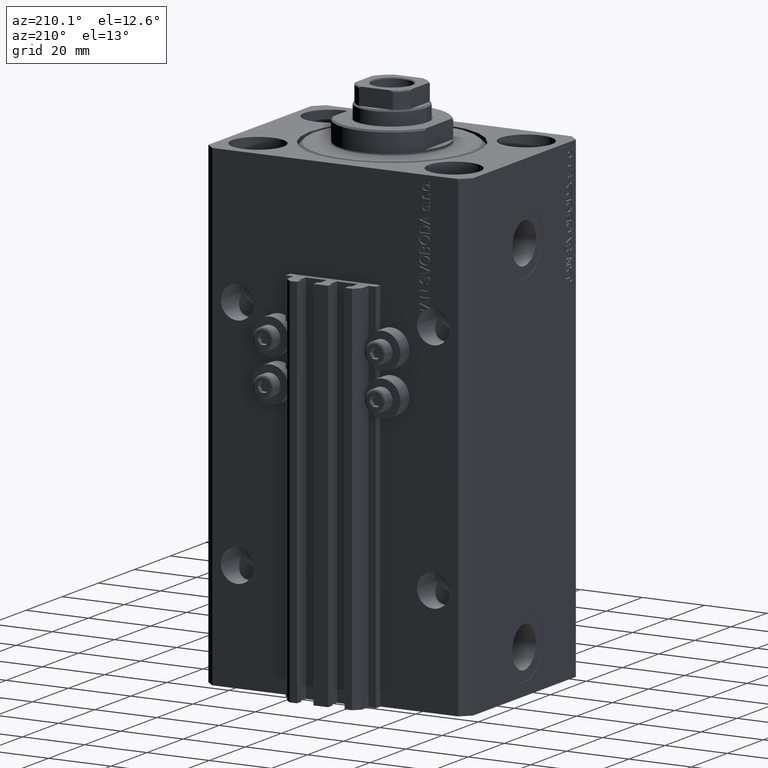
[diagram: clean part render]
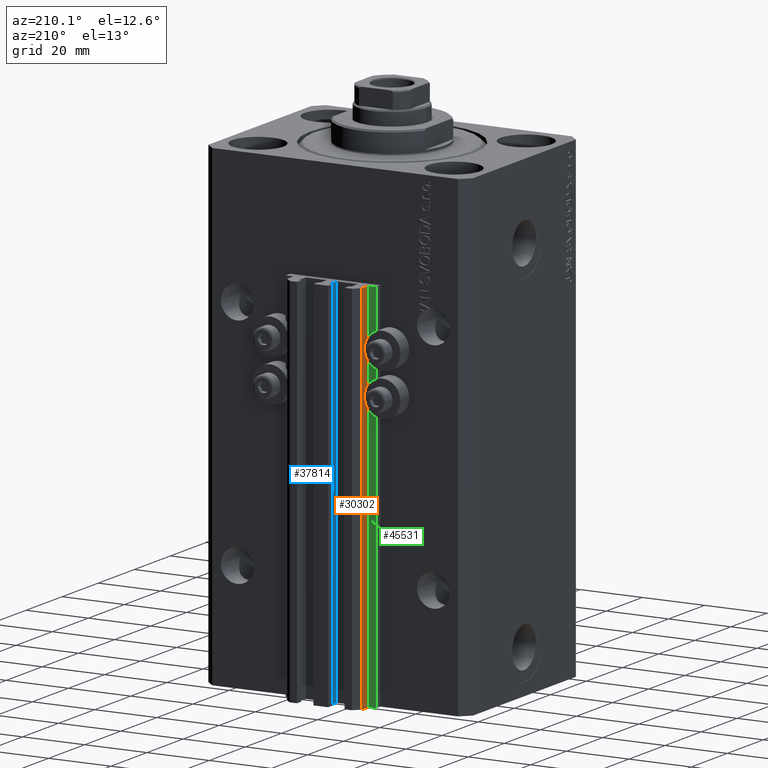
[diagram: same view with three faces highlighted in distinct colors, each labeled with its STEP entity id]
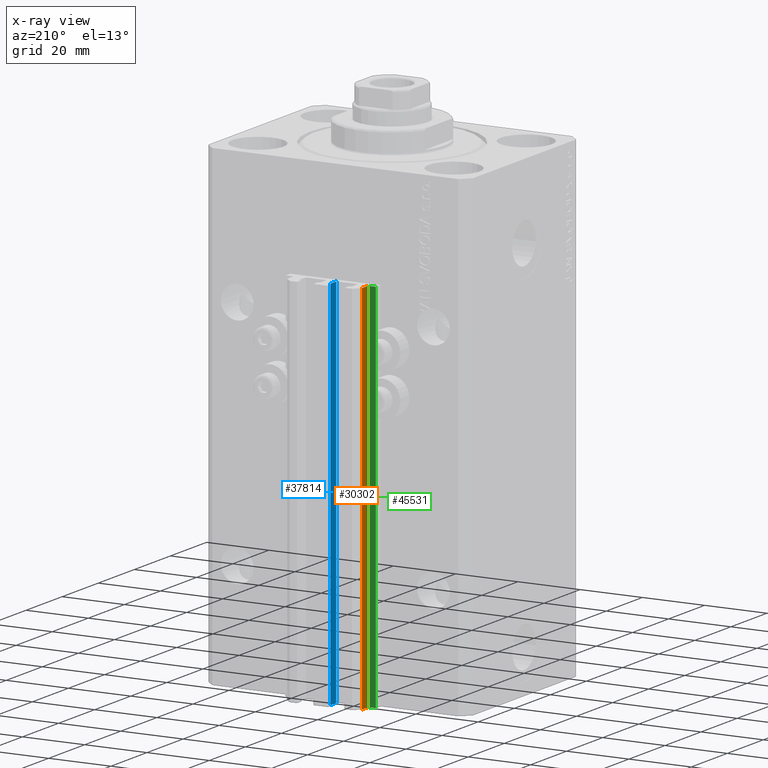
[diagram: x-ray of the same camera — body ghosted, the three highlighted faces saturated]
A machine part, auxiliary view with three faces highlighted in distinct colors.
The next image is the same camera in x-ray (body ghosted, the three faces saturated) — at least one of them is partly hidden behind the body in this view.
Their STEP definitions:

[orange] entity #30302 — the highlighted planar face has unit normal (-1, 0, 0).
#767 = EDGE_CURVE ( 'NONE', #21325, #40446, #3396, .T. ) ;
#1102 = DIRECTION ( 'NONE',  ( 0.000000000000000000, 0.000000000000000000, 1.000000000000000000 ) ) ;
#3396 = LINE ( 'NONE', #25556, #24740 ) ;
#4206 = CARTESIAN_POINT ( 'NONE',  ( -12.00000000000000000, 34.19999999999999574, -33.00000000000000000 ) ) ;
#5249 = FACE_OUTER_BOUND ( 'NONE', #37891, .T. ) ;
#7152 = VECTOR ( 'NONE', #1102, 1000.000000000000000 ) ;
#8898 = CARTESIAN_POINT ( 'NONE',  ( -12.00000000000000000, 37.49999999999999289, -153.0000000000000000 ) ) ;
#15077 = VERTEX_POINT ( 'NONE', #34061 ) ;
#16049 = AXIS2_PLACEMENT_3D ( 'NONE', #23260, #27382, #41994 ) ;
#17127 = EDGE_CURVE ( 'NONE', #15077, #39337, #27622, .T. ) ;
#17179 = CARTESIAN_POINT ( 'NONE',  ( -12.00000000000000000, 34.19999999999999574, -153.0000000000000000 ) ) ;
#18483 = DIRECTION ( 'NONE',  ( 0.000000000000000000, 0.000000000000000000, 1.000000000000000000 ) ) ;
#20522 = CARTESIAN_POINT ( 'NONE',  ( -12.00000000000000000, 37.49999999999999289, -153.0000000000000000 ) ) ;
#21325 = VERTEX_POINT ( 'NONE', #17179 ) ;
#23260 = CARTESIAN_POINT ( 'NONE',  ( -12.00000000000000000, 37.49999999999999289, -153.0000000000000000 ) ) ;
#23832 = ORIENTED_EDGE ( 'NONE', *, *, #24085, .F. ) ;
#24056 = CARTESIAN_POINT ( 'NONE',  ( -12.00000000000000000, 37.49999999999999289, -33.00000000000000000 ) ) ;
#24085 = EDGE_CURVE ( 'NONE', #39337, #40446, #34285, .T. ) ;
#24679 = EDGE_CURVE ( 'NONE', #15077, #21325, #46296, .T. ) ;
#24740 = VECTOR ( 'NONE', #18483, 1000.000000000000000 ) ;
#25556 = CARTESIAN_POINT ( 'NONE',  ( -12.00000000000000000, 34.19999999999999574, -153.0000000000000000 ) ) ;
#27368 = ORIENTED_EDGE ( 'NONE', *, *, #767, .T. ) ;
#27382 = DIRECTION ( 'NONE',  ( -1.000000000000000000, 0.000000000000000000, 0.000000000000000000 ) ) ;
#27622 = LINE ( 'NONE', #8898, #7152 ) ;
#28307 = DIRECTION ( 'NONE',  ( 0.000000000000000000, -1.000000000000000000, 0.000000000000000000 ) ) ;
#28392 = VECTOR ( 'NONE', #37938, 1000.000000000000000 ) ;
#29199 = VECTOR ( 'NONE', #28307, 1000.000000000000000 ) ;
#30302 = ADVANCED_FACE ( 'NONE', ( #5249 ), #37859, .T. ) ;
#31255 = CARTESIAN_POINT ( 'NONE',  ( -12.00000000000000000, 37.49999999999999289, -33.00000000000000000 ) ) ;
#34061 = CARTESIAN_POINT ( 'NONE',  ( -12.00000000000000000, 37.49999999999999289, -153.0000000000000000 ) ) ;
#34285 = LINE ( 'NONE', #24056, #28392 ) ;
#37859 = PLANE ( 'NONE',  #16049 ) ;
#37891 = EDGE_LOOP ( 'NONE', ( #23832, #38097, #46527, #27368 ) ) ;
#37938 = DIRECTION ( 'NONE',  ( 0.000000000000000000, -1.000000000000000000, 0.000000000000000000 ) ) ;
#38097 = ORIENTED_EDGE ( 'NONE', *, *, #17127, .F. ) ;
#39337 = VERTEX_POINT ( 'NONE', #31255 ) ;
#40446 = VERTEX_POINT ( 'NONE', #4206 ) ;
#41994 = DIRECTION ( 'NONE',  ( 0.000000000000000000, 0.000000000000000000, 1.000000000000000000 ) ) ;
#46296 = LINE ( 'NONE', #20522, #29199 ) ;
#46527 = ORIENTED_EDGE ( 'NONE', *, *, #24679, .T. ) ;

[blue] entity #37814 — the highlighted planar face has unit normal (-1, 0, 0).
#1025 = ORIENTED_EDGE ( 'NONE', *, *, #45408, .T. ) ;
#1064 = CARTESIAN_POINT ( 'NONE',  ( -1.600000000000000755, 33.70000000000000284, -33.00000000000000000 ) ) ;
#3579 = VECTOR ( 'NONE', #25351, 1000.000000000000000 ) ;
#4922 = ORIENTED_EDGE ( 'NONE', *, *, #5930, .T. ) ;
#5310 = DIRECTION ( 'NONE',  ( -6.776263578034385456E-17, -1.000000000000000000, 0.000000000000000000 ) ) ;
#5605 = LINE ( 'NONE', #41874, #32368 ) ;
#5930 = EDGE_CURVE ( 'NONE', #34076, #23125, #41392, .T. ) ;
#6137 = CARTESIAN_POINT ( 'NONE',  ( -1.600000000000001421, 36.90000000000000568, -153.0000000000000000 ) ) ;
#6769 = DIRECTION ( 'NONE',  ( -1.000000000000000000, 6.776263578034385456E-17, 0.000000000000000000 ) ) ;
#9944 = FACE_OUTER_BOUND ( 'NONE', #32840, .T. ) ;
#10777 = VECTOR ( 'NONE', #5310, 1000.000000000000000 ) ;
#10974 = ORIENTED_EDGE ( 'NONE', *, *, #29512, .F. ) ;
#15738 = CARTESIAN_POINT ( 'NONE',  ( -1.600000000000000755, 33.70000000000000284, -153.0000000000000000 ) ) ;
#17950 = CARTESIAN_POINT ( 'NONE',  ( -1.600000000000000533, 36.90000000000000568, -153.0000000000000000 ) ) ;
#18622 = AXIS2_PLACEMENT_3D ( 'NONE', #17950, #6769, #32332 ) ;
#18934 = CARTESIAN_POINT ( 'NONE',  ( -1.600000000000001421, 36.90000000000000568, -153.0000000000000000 ) ) ;
#20237 = VERTEX_POINT ( 'NONE', #1064 ) ;
#20445 = DIRECTION ( 'NONE',  ( -6.776263578034385456E-17, -1.000000000000000000, 0.000000000000000000 ) ) ;
#21693 = LINE ( 'NONE', #6137, #3579 ) ;
#23125 = VERTEX_POINT ( 'NONE', #34111 ) ;
#25351 = DIRECTION ( 'NONE',  ( 0.000000000000000000, 0.000000000000000000, 1.000000000000000000 ) ) ;
#27845 = VERTEX_POINT ( 'NONE', #36064 ) ;
#29512 = EDGE_CURVE ( 'NONE', #34076, #27845, #21693, .T. ) ;
#30567 = EDGE_CURVE ( 'NONE', #27845, #20237, #5605, .T. ) ;
#32332 = DIRECTION ( 'NONE',  ( -6.776263578034385456E-17, -1.000000000000000000, 0.000000000000000000 ) ) ;
#32368 = VECTOR ( 'NONE', #20445, 1000.000000000000000 ) ;
#32840 = EDGE_LOOP ( 'NONE', ( #41124, #10974, #4922, #1025 ) ) ;
#34076 = VERTEX_POINT ( 'NONE', #18934 ) ;
#34111 = CARTESIAN_POINT ( 'NONE',  ( -1.600000000000000755, 33.70000000000000284, -153.0000000000000000 ) ) ;
#36064 = CARTESIAN_POINT ( 'NONE',  ( -1.600000000000001421, 36.90000000000000568, -33.00000000000000000 ) ) ;
#36939 = VECTOR ( 'NONE', #45416, 1000.000000000000000 ) ;
#37188 = LINE ( 'NONE', #15738, #36939 ) ;
#37814 = ADVANCED_FACE ( 'NONE', ( #9944 ), #43014, .T. ) ;
#41124 = ORIENTED_EDGE ( 'NONE', *, *, #30567, .F. ) ;
#41392 = LINE ( 'NONE', #44558, #10777 ) ;
#41874 = CARTESIAN_POINT ( 'NONE',  ( -1.600000000000000533, 36.90000000000000568, -33.00000000000000000 ) ) ;
#43014 = PLANE ( 'NONE',  #18622 ) ;
#44558 = CARTESIAN_POINT ( 'NONE',  ( -1.600000000000000533, 36.90000000000000568, -153.0000000000000000 ) ) ;
#45408 = EDGE_CURVE ( 'NONE', #23125, #20237, #37188, .T. ) ;
#45416 = DIRECTION ( 'NONE',  ( 0.000000000000000000, 0.000000000000000000, 1.000000000000000000 ) ) ;

[green] entity #45531 — the highlighted planar face has unit normal (0, 1, 0).
#4555 = EDGE_CURVE ( 'NONE', #9526, #30310, #18346, .T. ) ;
#4760 = CARTESIAN_POINT ( 'NONE',  ( -14.50000000000000000, 33.99999999999998579, -153.0000000000000000 ) ) ;
#6780 = DIRECTION ( 'NONE',  ( -1.000000000000000000, 0.000000000000000000, 0.000000000000000000 ) ) ;
#8826 = ORIENTED_EDGE ( 'NONE', *, *, #9511, .F. ) ;
#9511 = EDGE_CURVE ( 'NONE', #45785, #22087, #14322, .T. ) ;
#9526 = VERTEX_POINT ( 'NONE', #29875 ) ;
#10611 = FACE_OUTER_BOUND ( 'NONE', #41634, .T. ) ;
#11452 = ORIENTED_EDGE ( 'NONE', *, *, #4555, .T. ) ;
#12730 = CARTESIAN_POINT ( 'NONE',  ( -14.50000000000000000, 33.99999999999998579, -33.00000000000000000 ) ) ;
#14322 = LINE ( 'NONE', #40108, #18673 ) ;
#14705 = LINE ( 'NONE', #19298, #19875 ) ;
#15644 = DIRECTION ( 'NONE',  ( 0.000000000000000000, 0.000000000000000000, 1.000000000000000000 ) ) ;
#15680 = CARTESIAN_POINT ( 'NONE',  ( -12.20000000000000107, 33.99999999999998579, -33.00000000000000000 ) ) ;
#16768 = LINE ( 'NONE', #35756, #21723 ) ;
#18346 = LINE ( 'NONE', #33219, #27047 ) ;
#18673 = VECTOR ( 'NONE', #6780, 1000.000000000000000 ) ;
#19298 = CARTESIAN_POINT ( 'NONE',  ( -14.50000000000000000, 33.99999999999998579, -153.0000000000000000 ) ) ;
#19875 = VECTOR ( 'NONE', #15644, 1000.000000000000000 ) ;
#20639 = AXIS2_PLACEMENT_3D ( 'NONE', #46848, #43934, #35922 ) ;
#21723 = VECTOR ( 'NONE', #27972, 1000.000000000000000 ) ;
#21746 = ORIENTED_EDGE ( 'NONE', *, *, #46863, .T. ) ;
#22087 = VERTEX_POINT ( 'NONE', #12730 ) ;
#24764 = ORIENTED_EDGE ( 'NONE', *, *, #36975, .F. ) ;
#27047 = VECTOR ( 'NONE', #29550, 1000.000000000000000 ) ;
#27972 = DIRECTION ( 'NONE',  ( 0.000000000000000000, 0.000000000000000000, 1.000000000000000000 ) ) ;
#29550 = DIRECTION ( 'NONE',  ( -1.000000000000000000, 0.000000000000000000, 0.000000000000000000 ) ) ;
#29875 = CARTESIAN_POINT ( 'NONE',  ( -12.20000000000000107, 33.99999999999998579, -153.0000000000000000 ) ) ;
#30310 = VERTEX_POINT ( 'NONE', #4760 ) ;
#32043 = PLANE ( 'NONE',  #20639 ) ;
#33219 = CARTESIAN_POINT ( 'NONE',  ( -12.20000000000000107, 33.99999999999998579, -153.0000000000000000 ) ) ;
#35756 = CARTESIAN_POINT ( 'NONE',  ( -12.20000000000000107, 33.99999999999998579, -153.0000000000000000 ) ) ;
#35922 = DIRECTION ( 'NONE',  ( 0.000000000000000000, 0.000000000000000000, 1.000000000000000000 ) ) ;
#36975 = EDGE_CURVE ( 'NONE', #9526, #45785, #16768, .T. ) ;
#40108 = CARTESIAN_POINT ( 'NONE',  ( -12.20000000000000107, 33.99999999999998579, -33.00000000000000000 ) ) ;
#41634 = EDGE_LOOP ( 'NONE', ( #8826, #24764, #11452, #21746 ) ) ;
#43934 = DIRECTION ( 'NONE',  ( 0.000000000000000000, 1.000000000000000000, -0.000000000000000000 ) ) ;
#45531 = ADVANCED_FACE ( 'NONE', ( #10611 ), #32043, .T. ) ;
#45785 = VERTEX_POINT ( 'NONE', #15680 ) ;
#46848 = CARTESIAN_POINT ( 'NONE',  ( -12.20000000000000107, 33.99999999999998579, -153.0000000000000000 ) ) ;
#46863 = EDGE_CURVE ( 'NONE', #30310, #22087, #14705, .T. ) ;